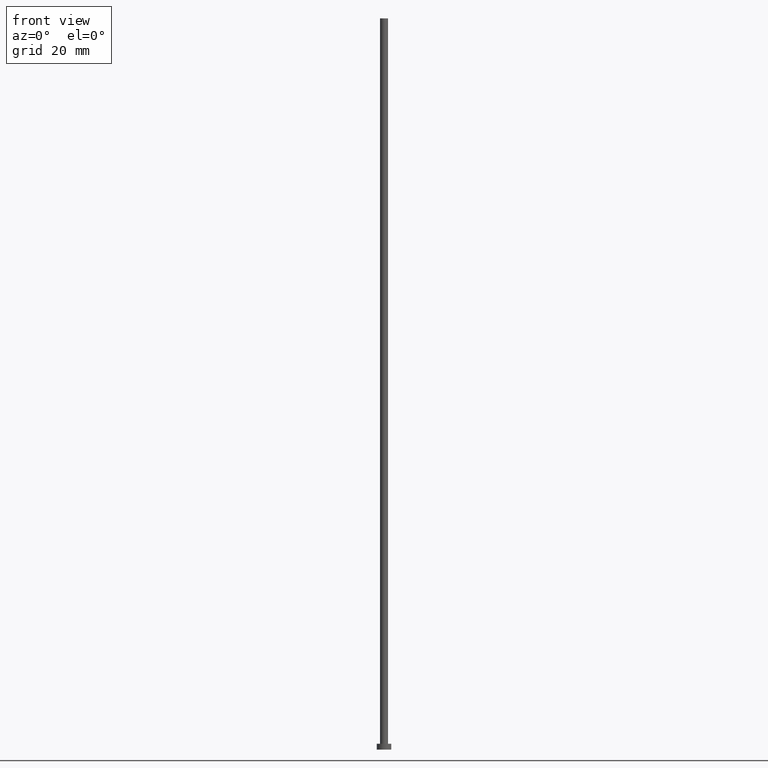
[diagram: clean part render]
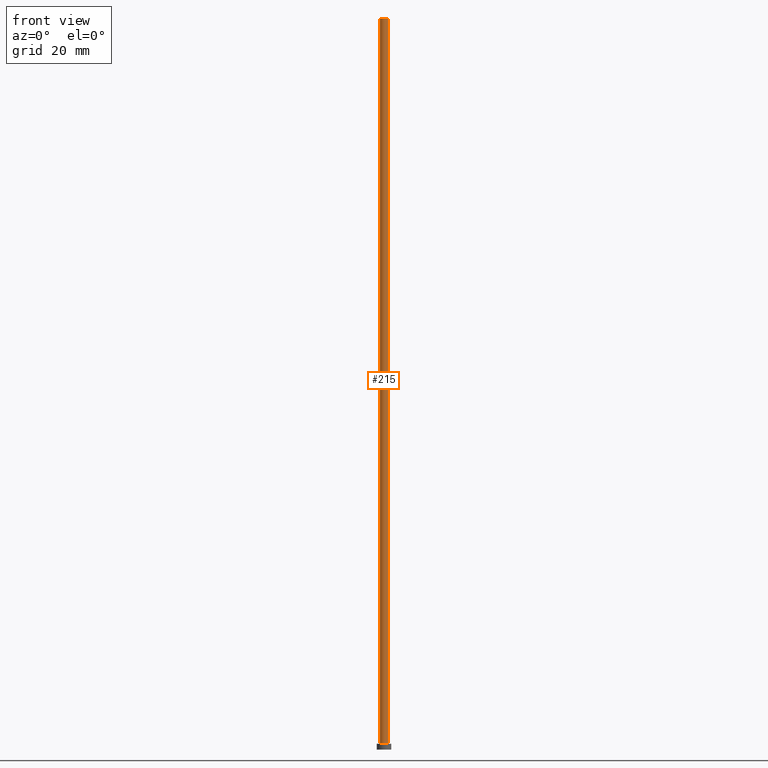
[diagram: same view with one face highlighted and labeled with its STEP entity id]
A machine part, front view. The second image highlights one B-rep face of the part: STEP entity #215.
In plain terms, the highlighted cylindrical surface (edge-blend (fillet) strip) has radius 1.35 mm, axis along (-0, -0, -1).
Its self-contained STEP definition (entity closure, byte-faithful):
#17 = VECTOR ( 'NONE', #90, 1000.000000000000000 ) ;
#27 = CARTESIAN_POINT ( 'NONE',  ( 0.000000000000000000, 0.000000000000000000, 250.0000000000000000 ) ) ;
#38 = CIRCLE ( 'NONE', #185, 1.350000000000000089 ) ;
#61 = AXIS2_PLACEMENT_3D ( 'NONE', #198, #126, #206 ) ;
#63 = FACE_OUTER_BOUND ( 'NONE', #228, .T. ) ;
#67 = LINE ( 'NONE', #213, #17 ) ;
#69 = VERTEX_POINT ( 'NONE', #217 ) ;
#71 = VERTEX_POINT ( 'NONE', #73 ) ;
#73 = CARTESIAN_POINT ( 'NONE',  ( -1.350000000000000089, 0.000000000000000000, 250.0000000000000000 ) ) ;
#78 = ORIENTED_EDGE ( 'NONE', *, *, #96, .F. ) ;
#84 = VERTEX_POINT ( 'NONE', #133 ) ;
#85 = DIRECTION ( 'NONE',  ( -0.000000000000000000, -0.000000000000000000, -1.000000000000000000 ) ) ;
#90 = DIRECTION ( 'NONE',  ( -0.000000000000000000, -0.000000000000000000, -1.000000000000000000 ) ) ;
#96 = EDGE_CURVE ( 'NONE', #71, #69, #143, .T. ) ;
#103 = CARTESIAN_POINT ( 'NONE',  ( -1.350000000000000089, 0.000000000000000000, 2.000000000000000000 ) ) ;
#105 = DIRECTION ( 'NONE',  ( -1.000000000000000000, 0.000000000000000000, 0.000000000000000000 ) ) ;
#107 = DIRECTION ( 'NONE',  ( 1.000000000000000000, 0.000000000000000000, 0.000000000000000000 ) ) ;
#126 = DIRECTION ( 'NONE',  ( 0.000000000000000000, 0.000000000000000000, 1.000000000000000000 ) ) ;
#133 = CARTESIAN_POINT ( 'NONE',  ( 1.350000000000000089, 1.653273178848926867E-16, 2.000000000000000000 ) ) ;
#135 = ORIENTED_EDGE ( 'NONE', *, *, #178, .T. ) ;
#143 = CIRCLE ( 'NONE', #61, 1.350000000000000089 ) ;
#149 = CARTESIAN_POINT ( 'NONE',  ( 0.000000000000000000, 0.000000000000000000, 2.000000000000000000 ) ) ;
#150 = LINE ( 'NONE', #209, #163 ) ;
#163 = VECTOR ( 'NONE', #85, 1000.000000000000000 ) ;
#165 = ORIENTED_EDGE ( 'NONE', *, *, #167, .F. ) ;
#167 = EDGE_CURVE ( 'NONE', #69, #84, #67, .T. ) ;
#172 = CYLINDRICAL_SURFACE ( 'NONE', #221, 1.350000000000000089 ) ;
#178 = EDGE_CURVE ( 'NONE', #71, #232, #150, .T. ) ;
#183 = DIRECTION ( 'NONE',  ( -0.000000000000000000, -0.000000000000000000, -1.000000000000000000 ) ) ;
#185 = AXIS2_PLACEMENT_3D ( 'NONE', #149, #233, #107 ) ;
#198 = CARTESIAN_POINT ( 'NONE',  ( 0.000000000000000000, 0.000000000000000000, 250.0000000000000000 ) ) ;
#206 = DIRECTION ( 'NONE',  ( 1.000000000000000000, 0.000000000000000000, 0.000000000000000000 ) ) ;
#209 = CARTESIAN_POINT ( 'NONE',  ( -1.350000000000000089, 0.000000000000000000, 250.0000000000000000 ) ) ;
#213 = CARTESIAN_POINT ( 'NONE',  ( 1.350000000000000089, 1.653273178848926867E-16, 250.0000000000000000 ) ) ;
#215 = ADVANCED_FACE ( 'NONE', ( #63 ), #172, .T. ) ;
#217 = CARTESIAN_POINT ( 'NONE',  ( 1.350000000000000089, 1.653273178848926867E-16, 250.0000000000000000 ) ) ;
#219 = EDGE_CURVE ( 'NONE', #232, #84, #38, .T. ) ;
#221 = AXIS2_PLACEMENT_3D ( 'NONE', #27, #183, #105 ) ;
#228 = EDGE_LOOP ( 'NONE', ( #165, #78, #135, #248 ) ) ;
#232 = VERTEX_POINT ( 'NONE', #103 ) ;
#233 = DIRECTION ( 'NONE',  ( 0.000000000000000000, 0.000000000000000000, 1.000000000000000000 ) ) ;
#248 = ORIENTED_EDGE ( 'NONE', *, *, #219, .T. ) ;